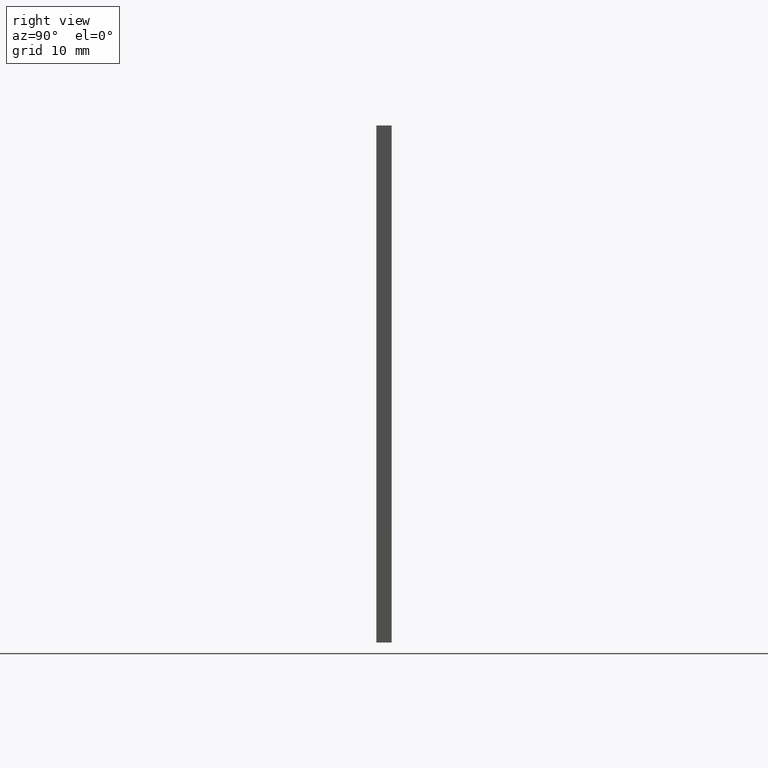
[diagram: clean part render]
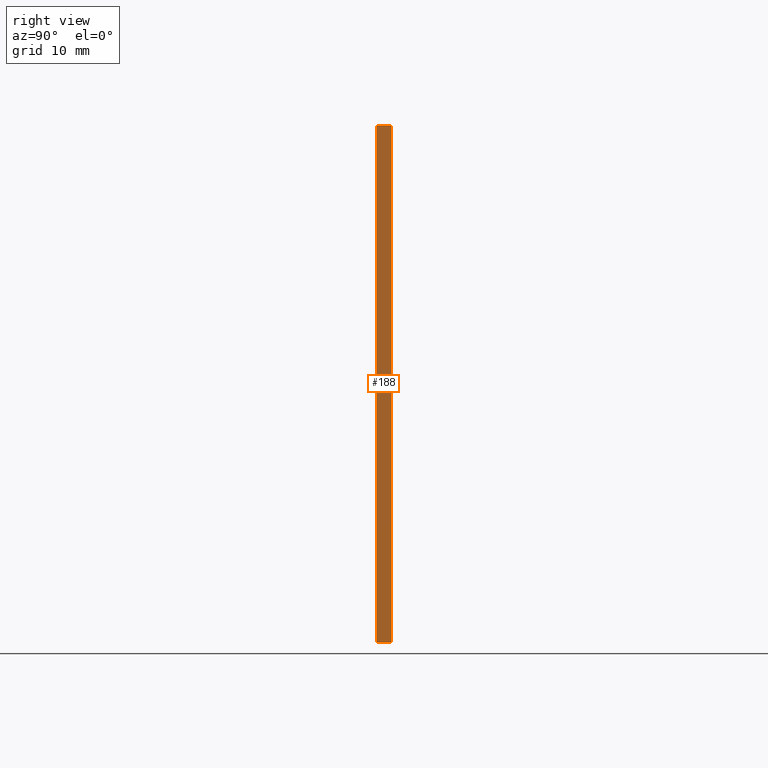
[diagram: same view with one face highlighted and labeled with its STEP entity id]
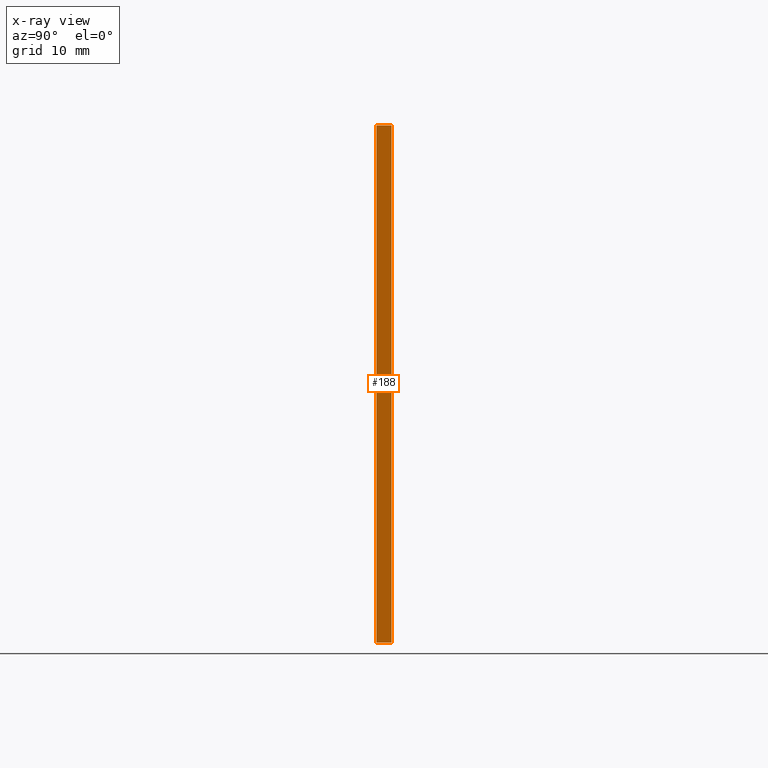
[diagram: x-ray of the same camera — body ghosted, the highlighted face saturated]
A machine part, right view. The second image highlights one B-rep face of the part: STEP entity #188.
The next image is the same camera in x-ray: the body ghosted, the highlighted face saturated — about 0% of this face is hidden behind the body in this view.
In plain terms, the highlighted planar face has unit normal (-1, 0, 0).
Its self-contained STEP definition (entity closure, byte-faithful):
#2 = VECTOR ( 'NONE', #26, 1000.000000000000000 ) ;
#13 = CARTESIAN_POINT ( 'NONE',  ( 25.39999999999999500, 1.500000000000000000, 25.39999999999999900 ) ) ;
#25 = CARTESIAN_POINT ( 'NONE',  ( 25.39999999999999500, 1.500000000000000000, -25.39999999999999900 ) ) ;
#26 = DIRECTION ( 'NONE',  ( -0.0000000000000000000, -1.000000000000000000, -0.0000000000000000000 ) ) ;
#49 = CARTESIAN_POINT ( 'NONE',  ( 25.39999999999999500, 1.500000000000000000, -25.39999999999999900 ) ) ;
#51 = FACE_OUTER_BOUND ( 'NONE', #125, .T. ) ;
#52 = EDGE_CURVE ( 'NONE', #147, #131, #198, .T. ) ;
#60 = VERTEX_POINT ( 'NONE', #199 ) ;
#61 = DIRECTION ( 'NONE',  ( -0.0000000000000000000, -1.000000000000000000, -0.0000000000000000000 ) ) ;
#63 = ORIENTED_EDGE ( 'NONE', *, *, #52, .F. ) ;
#64 = LINE ( 'NONE', #155, #72 ) ;
#70 = DIRECTION ( 'NONE',  ( 0.0000000000000000000, 0.0000000000000000000, -1.000000000000000000 ) ) ;
#72 = VECTOR ( 'NONE', #61, 1000.000000000000000 ) ;
#75 = VECTOR ( 'NONE', #70, 1000.000000000000000 ) ;
#76 = ORIENTED_EDGE ( 'NONE', *, *, #142, .T. ) ;
#87 = DIRECTION ( 'NONE',  ( 0.0000000000000000000, 0.0000000000000000000, -1.000000000000000000 ) ) ;
#92 = LINE ( 'NONE', #196, #132 ) ;
#102 = VERTEX_POINT ( 'NONE', #124 ) ;
#108 = CARTESIAN_POINT ( 'NONE',  ( 25.39999999999999500, 1.500000000000000000, 25.39999999999999900 ) ) ;
#124 = CARTESIAN_POINT ( 'NONE',  ( 25.39999999999999500, 0.0000000000000000000, -25.39999999999999900 ) ) ;
#125 = EDGE_LOOP ( 'NONE', ( #76, #144, #63, #166 ) ) ;
#127 = LINE ( 'NONE', #25, #2 ) ;
#131 = VERTEX_POINT ( 'NONE', #49 ) ;
#132 = VECTOR ( 'NONE', #87, 1000.000000000000000 ) ;
#138 = CARTESIAN_POINT ( 'NONE',  ( 25.39999999999999500, 1.500000000000000000, 25.39999999999999900 ) ) ;
#142 = EDGE_CURVE ( 'NONE', #60, #102, #92, .T. ) ;
#143 = EDGE_CURVE ( 'NONE', #147, #60, #64, .T. ) ;
#144 = ORIENTED_EDGE ( 'NONE', *, *, #173, .F. ) ;
#147 = VERTEX_POINT ( 'NONE', #108 ) ;
#153 = PLANE ( 'NONE',  #193 ) ;
#155 = CARTESIAN_POINT ( 'NONE',  ( 25.39999999999999500, 1.500000000000000000, 25.39999999999999900 ) ) ;
#166 = ORIENTED_EDGE ( 'NONE', *, *, #143, .T. ) ;
#167 = DIRECTION ( 'NONE',  ( 0.0000000000000000000, 0.0000000000000000000, 1.000000000000000000 ) ) ;
#173 = EDGE_CURVE ( 'NONE', #131, #102, #127, .T. ) ;
#188 = ADVANCED_FACE ( 'NONE', ( #51 ), #153, .F. ) ;
#193 = AXIS2_PLACEMENT_3D ( 'NONE', #138, #197, #167 ) ;
#196 = CARTESIAN_POINT ( 'NONE',  ( 25.39999999999999500, 0.0000000000000000000, 25.39999999999999900 ) ) ;
#197 = DIRECTION ( 'NONE',  ( -1.000000000000000000, 0.0000000000000000000, 0.0000000000000000000 ) ) ;
#198 = LINE ( 'NONE', #13, #75 ) ;
#199 = CARTESIAN_POINT ( 'NONE',  ( 25.39999999999999500, 0.0000000000000000000, 25.39999999999999900 ) ) ;